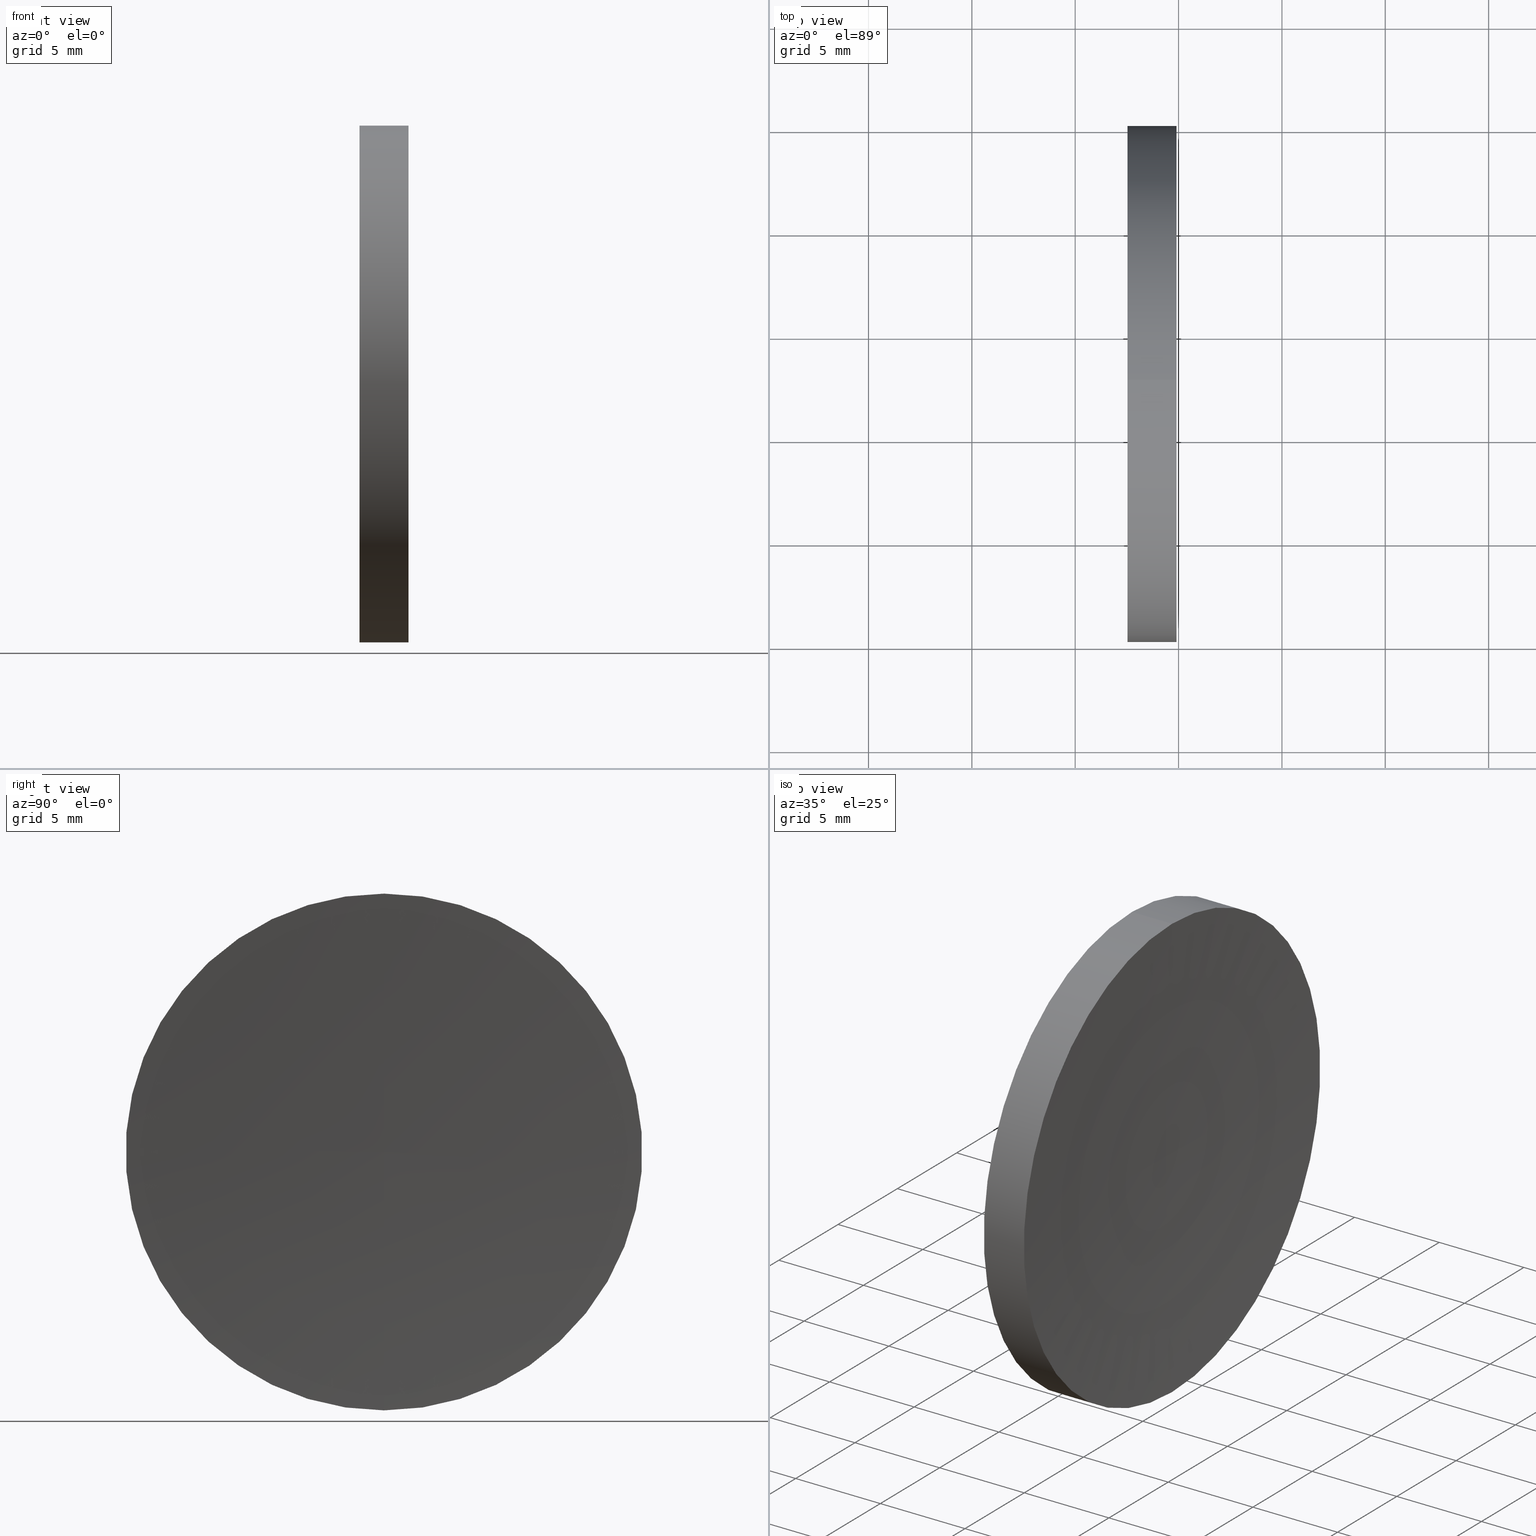
[diagram: canonical four-view strip — front | top / right | iso, engineering-drawing reading convention]
A machine part, canonical four-view strip (front | top / right | iso — engineering-drawing reading convention). The complete STEP part file that produces these views, byte-faithful:
ISO-10303-21;
HEADER;
FILE_DESCRIPTION (( 'STEP AP214' ),
    '1' );
FILE_NAME ('120040.STEP',
    '2019-06-17T05:56:19',
    ( '' ),
    ( '' ),
    'SwSTEP 2.0',
    'SolidWorks 2016',
    '' );
FILE_SCHEMA (( 'AUTOMOTIVE_DESIGN' ));
ENDSEC;

DATA;
#1 =( NAMED_UNIT ( * ) SI_UNIT ( $, .STERADIAN. ) SOLID_ANGLE_UNIT ( ) );
#2 = DIRECTION ( 'NONE',  ( -1.000000000000000000, -0.0000000000000000000, -0.0000000000000000000 ) ) ;
#3 =( NAMED_UNIT ( * ) SI_UNIT ( $, .STERADIAN. ) SOLID_ANGLE_UNIT ( ) );
#4 = ORIENTED_EDGE ( 'NONE', *, *, #145, .T. ) ;
#5 =( GEOMETRIC_REPRESENTATION_CONTEXT ( 3 ) GLOBAL_UNCERTAINTY_ASSIGNED_CONTEXT ( ( #108 ) ) GLOBAL_UNIT_ASSIGNED_CONTEXT ( ( #18, #49, #66 ) ) REPRESENTATION_CONTEXT ( 'NONE', 'WORKASPACE' ) );
#6 = DIRECTION ( 'NONE',  ( 1.000000000000000000, 0.0000000000000000000, 0.0000000000000000000 ) ) ;
#7 = CARTESIAN_POINT ( 'NONE',  ( 57.53233705252611700, 32.61076812922678400, 12.49999999999999600 ) ) ;
#8 = CARTESIAN_POINT ( 'NONE',  ( 57.53233705252611700, 32.61076812922678400, 0.0000000000000000000 ) ) ;
#9 = DIRECTION ( 'NONE',  ( -1.000000000000000000, -0.0000000000000000000, -0.0000000000000000000 ) ) ;
#10 = AXIS2_PLACEMENT_3D ( 'NONE', #112, #51, #19 ) ;
#11 = ADVANCED_FACE ( 'NONE', ( #140 ), #106, .T. ) ;
#12 = VERTEX_POINT ( 'NONE', #57 ) ;
#13 = CIRCLE ( 'NONE', #162, 12.49999999999999600 ) ;
#14 = PRODUCT_DEFINITION_SHAPE ( 'NONE', 'NONE',  #130 ) ;
#15 = ORIENTED_EDGE ( 'NONE', *, *, #98, .F. ) ;
#16 =( NAMED_UNIT ( * ) PLANE_ANGLE_UNIT ( ) SI_UNIT ( $, .RADIAN. ) );
#17 = EDGE_LOOP ( 'NONE', ( #131, #42, #81 ) ) ;
#18 =( LENGTH_UNIT ( ) NAMED_UNIT ( * ) SI_UNIT ( .MILLI., .METRE. ) );
#19 = DIRECTION ( 'NONE',  ( 0.0000000000000000000, -1.346704299642353900E-016, 1.000000000000000000 ) ) ;
#20 = FILL_AREA_STYLE ('',( #89 ) ) ;
#21 = DIRECTION ( 'NONE',  ( 0.0000000000000000000, 0.0000000000000000000, 1.000000000000000000 ) ) ;
#22 = STYLED_ITEM ( 'NONE', ( #93 ), #132 ) ;
#23 = CARTESIAN_POINT ( 'NONE',  ( 57.53233705252611700, 32.61076812922678400, 0.0000000000000000000 ) ) ;
#24 = TOROIDAL_SURFACE ( 'NONE', #38, 0.2339697193769613200, 206.0999999999999900 ) ;
#25 = CARTESIAN_POINT ( 'NONE',  ( 56.10091507999716500, 32.61076812922678400, 0.0000000000000000000 ) ) ;
#26 = VERTEX_POINT ( 'NONE', #126 ) ;
#27 = EDGE_CURVE ( 'NONE', #12, #44, #76, .T. ) ;
#28 = ADVANCED_FACE ( 'NONE', ( #90 ), #150, .T. ) ;
#29 = ADVANCED_FACE ( 'NONE', ( #115 ), #83, .F. ) ;
#30 = CIRCLE ( 'NONE', #77, 206.0999999999999900 ) ;
#31 = AXIS2_PLACEMENT_3D ( 'NONE', #8, #157, #94 ) ;
#32 = FACE_OUTER_BOUND ( 'NONE', #17, .T. ) ;
#33 =( LENGTH_UNIT ( ) NAMED_UNIT ( * ) SI_UNIT ( .MILLI., .METRE. ) );
#34 = SURFACE_STYLE_USAGE ( .BOTH. , #100 ) ;
#35 = VECTOR ( 'NONE', #9, 1000.000000000000000 ) ;
#36 = EDGE_LOOP ( 'NONE', ( #52, #154, #4, #99 ) ) ;
#37 = DIRECTION ( 'NONE',  ( 0.0000000000000000000, 0.0000000000000000000, 1.000000000000000000 ) ) ;
#38 = AXIS2_PLACEMENT_3D ( 'NONE', #43, #161, #159 ) ;
#39 = EDGE_LOOP ( 'NONE', ( #133, #75 ) ) ;
#40 = VERTEX_POINT ( 'NONE', #143 ) ;
#41 =( NAMED_UNIT ( * ) PLANE_ANGLE_UNIT ( ) SI_UNIT ( $, .RADIAN. ) );
#42 = ORIENTED_EDGE ( 'NONE', *, *, #147, .F. ) ;
#43 = CARTESIAN_POINT ( 'NONE',  ( 265.6322042484329100, 32.61076812922678400, 0.0000000000000000000 ) ) ;
#44 = VERTEX_POINT ( 'NONE', #7 ) ;
#45 = ADVANCED_FACE ( 'NONE', ( #61 ), #24, .F. ) ;
#46 = SHAPE_DEFINITION_REPRESENTATION ( #14, #84 ) ;
#47 = EDGE_CURVE ( 'NONE', #26, #12, #59, .T. ) ;
#48 = CIRCLE ( 'NONE', #10, 206.0999999999999900 ) ;
#49 =( NAMED_UNIT ( * ) PLANE_ANGLE_UNIT ( ) SI_UNIT ( $, .RADIAN. ) );
#50 = DIRECTION ( 'NONE',  ( -1.000000000000000000, -0.0000000000000000000, -0.0000000000000000000 ) ) ;
#51 = DIRECTION ( 'NONE',  ( -0.0000000000000000000, 1.000000000000000000, 1.224646799147353200E-016 ) ) ;
#52 = ORIENTED_EDGE ( 'NONE', *, *, #47, .F. ) ;
#53 = PRODUCT ( '120040', '120040', '', ( #110 ) ) ;
#54 = TOROIDAL_SURFACE ( 'NONE', #166, 0.2339697193769613200, 206.0999999999999900 ) ;
#55 = DIRECTION ( 'NONE',  ( 0.0000000000000000000, 0.0000000000000000000, 1.000000000000000000 ) ) ;
#56 = DIRECTION ( 'NONE',  ( -1.000000000000000000, -0.0000000000000000000, -0.0000000000000000000 ) ) ;
#57 = CARTESIAN_POINT ( 'NONE',  ( 57.53233705252611700, 32.61076812922678400, -12.49999999999999600 ) ) ;
#58 = MECHANICAL_DESIGN_GEOMETRIC_PRESENTATION_REPRESENTATION (  '', ( #22 ), #86 ) ;
#59 = LINE ( 'NONE', #78, #35 ) ;
#60 = SURFACE_STYLE_FILL_AREA ( #20 ) ;
#61 = FACE_OUTER_BOUND ( 'NONE', #103, .T. ) ;
#62 = APPLICATION_CONTEXT ( 'automotive_design' ) ;
#63 = DIRECTION ( 'NONE',  ( 1.000000000000000000, 0.0000000000000000000, 0.0000000000000000000 ) ) ;
#64 = DIRECTION ( 'NONE',  ( 0.0000000000000000000, 0.0000000000000000000, 1.000000000000000000 ) ) ;
#65 = DIRECTION ( 'NONE',  ( 0.0000000000000000000, 0.0000000000000000000, -1.000000000000000000 ) ) ;
#66 =( NAMED_UNIT ( * ) SI_UNIT ( $, .STERADIAN. ) SOLID_ANGLE_UNIT ( ) );
#67 = DIRECTION ( 'NONE',  ( 0.0000000000000000000, 0.0000000000000000000, 1.000000000000000000 ) ) ;
#68 = CARTESIAN_POINT ( 'NONE',  ( 265.6322042484329100, 32.61076812922678400, 0.2339697193769613200 ) ) ;
#69 = APPLICATION_PROTOCOL_DEFINITION ( 'draft international standard', 'automotive_design', 1998, #139 ) ;
#70 = AXIS2_PLACEMENT_3D ( 'NONE', #158, #72, #55 ) ;
#71 = ORIENTED_EDGE ( 'NONE', *, *, #47, .T. ) ;
#72 = DIRECTION ( 'NONE',  ( -1.000000000000000000, -0.0000000000000000000, -0.0000000000000000000 ) ) ;
#73 =( LENGTH_UNIT ( ) NAMED_UNIT ( * ) SI_UNIT ( .MILLI., .METRE. ) );
#74 = SURFACE_STYLE_USAGE ( .BOTH. , #105 ) ;
#75 = ORIENTED_EDGE ( 'NONE', *, *, #27, .T. ) ;
#76 = CIRCLE ( 'NONE', #31, 12.49999999999999600 ) ;
#77 = AXIS2_PLACEMENT_3D ( 'NONE', #68, #80, #65 ) ;
#78 = CARTESIAN_POINT ( 'NONE',  ( 56.10091507999716500, 32.61076812922678400, -12.49999999999999600 ) ) ;
#79 = AXIS2_PLACEMENT_3D ( 'NONE', #25, #56, #37 ) ;
#80 = DIRECTION ( 'NONE',  ( 0.0000000000000000000, -1.000000000000000000, 0.0000000000000000000 ) ) ;
#81 = ORIENTED_EDGE ( 'NONE', *, *, #98, .T. ) ;
#82 = VECTOR ( 'NONE', #50, 1000.000000000000000 ) ;
#83 = PLANE ( 'NONE',  #149 ) ;
#84 = ADVANCED_BREP_SHAPE_REPRESENTATION ( '120040', ( #132, #124 ), #5 ) ;
#85 = PRODUCT_DEFINITION_CONTEXT ( 'detailed design', #62, 'design' ) ;
#86 =( GEOMETRIC_REPRESENTATION_CONTEXT ( 3 ) GLOBAL_UNCERTAINTY_ASSIGNED_CONTEXT ( ( #148 ) ) GLOBAL_UNIT_ASSIGNED_CONTEXT ( ( #73, #16, #3 ) ) REPRESENTATION_CONTEXT ( 'NONE', 'WORKASPACE' ) );
#87 = AXIS2_PLACEMENT_3D ( 'NONE', #123, #137, #67 ) ;
#88 = COLOUR_RGB ( '',1.000000000000000000, 1.000000000000000000, 1.000000000000000000 ) ;
#89 = FILL_AREA_STYLE_COLOUR ( '', #95 ) ;
#90 = FACE_OUTER_BOUND ( 'NONE', #36, .T. ) ;
#91 = FILL_AREA_STYLE_COLOUR ( '', #88 ) ;
#92 = PRESENTATION_LAYER_ASSIGNMENT (  '', '', ( #22 ) ) ;
#93 = PRESENTATION_STYLE_ASSIGNMENT (( #74 ) ) ;
#94 = DIRECTION ( 'NONE',  ( 0.0000000000000000000, 0.0000000000000000000, 1.000000000000000000 ) ) ;
#95 = COLOUR_RGB ( '',1.000000000000000000, 1.000000000000000000, 1.000000000000000000 ) ;
#96 = ORIENTED_EDGE ( 'NONE', *, *, #145, .F. ) ;
#97 = ADVANCED_FACE ( 'NONE', ( #32 ), #54, .F. ) ;
#98 = EDGE_CURVE ( 'NONE', #118, #40, #30, .T. ) ;
#99 = ORIENTED_EDGE ( 'NONE', *, *, #27, .F. ) ;
#100 = SURFACE_SIDE_STYLE ('',( #60 ) ) ;
#101 = EDGE_CURVE ( 'NONE', #26, #40, #48, .T. ) ;
#102 = DIRECTION ( 'NONE',  ( 0.0000000000000000000, 0.0000000000000000000, 1.000000000000000000 ) ) ;
#103 = EDGE_LOOP ( 'NONE', ( #160, #164, #15 ) ) ;
#104 = CIRCLE ( 'NONE', #87, 12.49999999999999600 ) ;
#105 = SURFACE_SIDE_STYLE ('',( #120 ) ) ;
#106 = CYLINDRICAL_SURFACE ( 'NONE', #79, 12.49999999999999600 ) ;
#107 = STYLED_ITEM ( 'NONE', ( #163 ), #84 ) ;
#108 = UNCERTAINTY_MEASURE_WITH_UNIT (LENGTH_MEASURE( 1.000000000000000100E-005 ), #18, 'distance_accuracy_value', 'NONE');
#109 = LINE ( 'NONE', #152, #82 ) ;
#110 = PRODUCT_CONTEXT ( 'NONE', #139, 'mechanical' ) ;
#111 = CARTESIAN_POINT ( 'NONE',  ( 59.89753409982904500, 32.61076812922678400, 0.0000000000000000000 ) ) ;
#112 = CARTESIAN_POINT ( 'NONE',  ( 265.6322042484329100, 32.61076812922678400, -0.2339697193769613200 ) ) ;
#113 = CARTESIAN_POINT ( 'NONE',  ( 0.0000000000000000000, 0.0000000000000000000, 0.0000000000000000000 ) ) ;
#114 = PRESENTATION_LAYER_ASSIGNMENT (  '', '', ( #107 ) ) ;
#115 = FACE_OUTER_BOUND ( 'NONE', #39, .T. ) ;
#116 = ORIENTED_EDGE ( 'NONE', *, *, #134, .F. ) ;
#117 = UNCERTAINTY_MEASURE_WITH_UNIT (LENGTH_MEASURE( 1.000000000000000100E-005 ), #33, 'distance_accuracy_value', 'NONE');
#118 = VERTEX_POINT ( 'NONE', #136 ) ;
#119 = MECHANICAL_DESIGN_GEOMETRIC_PRESENTATION_REPRESENTATION (  '', ( #107 ), #142 ) ;
#120 = SURFACE_STYLE_FILL_AREA ( #153 ) ;
#121 = CARTESIAN_POINT ( 'NONE',  ( 57.53233705252611700, 32.61076812922678400, 0.0000000000000000000 ) ) ;
#122 = ORIENTED_EDGE ( 'NONE', *, *, #147, .T. ) ;
#123 = CARTESIAN_POINT ( 'NONE',  ( 59.89753409982904500, 32.61076812922678400, 0.0000000000000000000 ) ) ;
#124 = AXIS2_PLACEMENT_3D ( 'NONE', #113, #125, #63 ) ;
#125 = DIRECTION ( 'NONE',  ( 0.0000000000000000000, 0.0000000000000000000, 1.000000000000000000 ) ) ;
#126 = CARTESIAN_POINT ( 'NONE',  ( 59.89753409982903800, 32.61076812922678400, -12.49999999999998000 ) ) ;
#127 = CLOSED_SHELL ( 'NONE', ( #11, #45, #97, #28, #29 ) ) ;
#128 = AXIS2_PLACEMENT_3D ( 'NONE', #111, #2, #102 ) ;
#129 = EDGE_LOOP ( 'NONE', ( #122, #71, #116, #96 ) ) ;
#130 = PRODUCT_DEFINITION ( 'δ֪', '', #146, #85 ) ;
#131 = ORIENTED_EDGE ( 'NONE', *, *, #101, .F. ) ;
#132 = MANIFOLD_SOLID_BREP ( '��ת1', #127 ) ;
#133 = ORIENTED_EDGE ( 'NONE', *, *, #134, .T. ) ;
#134 = EDGE_CURVE ( 'NONE', #44, #12, #13, .T. ) ;
#135 = DIRECTION ( 'NONE',  ( -1.000000000000000000, -0.0000000000000000000, -0.0000000000000000000 ) ) ;
#136 = CARTESIAN_POINT ( 'NONE',  ( 59.89753409982903800, 32.61076812922678400, 12.49999999999998000 ) ) ;
#137 = DIRECTION ( 'NONE',  ( -1.000000000000000000, -0.0000000000000000000, -0.0000000000000000000 ) ) ;
#138 = DIRECTION ( 'NONE',  ( -1.000000000000000000, -0.0000000000000000000, -0.0000000000000000000 ) ) ;
#139 = APPLICATION_CONTEXT ( 'automotive_design' ) ;
#140 = FACE_OUTER_BOUND ( 'NONE', #129, .T. ) ;
#141 = CIRCLE ( 'NONE', #128, 12.49999999999999600 ) ;
#142 =( GEOMETRIC_REPRESENTATION_CONTEXT ( 3 ) GLOBAL_UNCERTAINTY_ASSIGNED_CONTEXT ( ( #117 ) ) GLOBAL_UNIT_ASSIGNED_CONTEXT ( ( #33, #41, #1 ) ) REPRESENTATION_CONTEXT ( 'NONE', 'WORKASPACE' ) );
#143 = CARTESIAN_POINT ( 'NONE',  ( 59.53233705252613800, 32.61076812922678400, 0.0000000000000000000 ) ) ;
#144 = DIRECTION ( 'NONE',  ( 0.0000000000000000000, 0.0000000000000000000, -1.000000000000000000 ) ) ;
#145 = EDGE_CURVE ( 'NONE', #118, #44, #109, .T. ) ;
#146 = PRODUCT_DEFINITION_FORMATION_WITH_SPECIFIED_SOURCE ( '�κ�', '', #53, .NOT_KNOWN. ) ;
#147 = EDGE_CURVE ( 'NONE', #118, #26, #104, .T. ) ;
#148 = UNCERTAINTY_MEASURE_WITH_UNIT (LENGTH_MEASURE( 1.000000000000000100E-005 ), #73, 'distance_accuracy_value', 'NONE');
#149 = AXIS2_PLACEMENT_3D ( 'NONE', #23, #6, #144 ) ;
#150 = CYLINDRICAL_SURFACE ( 'NONE', #70, 12.49999999999999600 ) ;
#151 = APPLICATION_PROTOCOL_DEFINITION ( 'draft international standard', 'automotive_design', 1998, #62 ) ;
#152 = CARTESIAN_POINT ( 'NONE',  ( 56.10091507999716500, 32.61076812922678400, 12.49999999999999600 ) ) ;
#153 = FILL_AREA_STYLE ('',( #91 ) ) ;
#154 = ORIENTED_EDGE ( 'NONE', *, *, #165, .T. ) ;
#155 = CARTESIAN_POINT ( 'NONE',  ( 265.6322042484329100, 32.61076812922678400, 0.0000000000000000000 ) ) ;
#156 = PRODUCT_RELATED_PRODUCT_CATEGORY ( 'part', '', ( #53 ) ) ;
#157 = DIRECTION ( 'NONE',  ( -1.000000000000000000, -0.0000000000000000000, -0.0000000000000000000 ) ) ;
#158 = CARTESIAN_POINT ( 'NONE',  ( 56.10091507999716500, 32.61076812922678400, 0.0000000000000000000 ) ) ;
#159 = DIRECTION ( 'NONE',  ( 0.0000000000000000000, 0.0000000000000000000, 1.000000000000000000 ) ) ;
#160 = ORIENTED_EDGE ( 'NONE', *, *, #165, .F. ) ;
#161 = DIRECTION ( 'NONE',  ( -1.000000000000000000, -0.0000000000000000000, -0.0000000000000000000 ) ) ;
#162 = AXIS2_PLACEMENT_3D ( 'NONE', #121, #135, #64 ) ;
#163 = PRESENTATION_STYLE_ASSIGNMENT (( #34 ) ) ;
#164 = ORIENTED_EDGE ( 'NONE', *, *, #101, .T. ) ;
#165 = EDGE_CURVE ( 'NONE', #26, #118, #141, .T. ) ;
#166 = AXIS2_PLACEMENT_3D ( 'NONE', #155, #138, #21 ) ;
ENDSEC;
END-ISO-10303-21;
